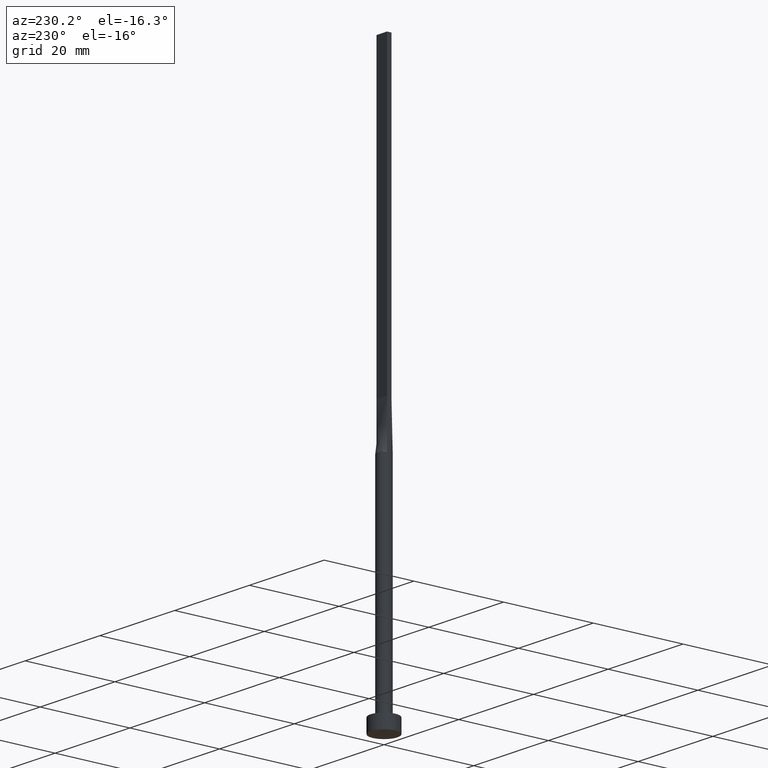
[diagram: clean part render]
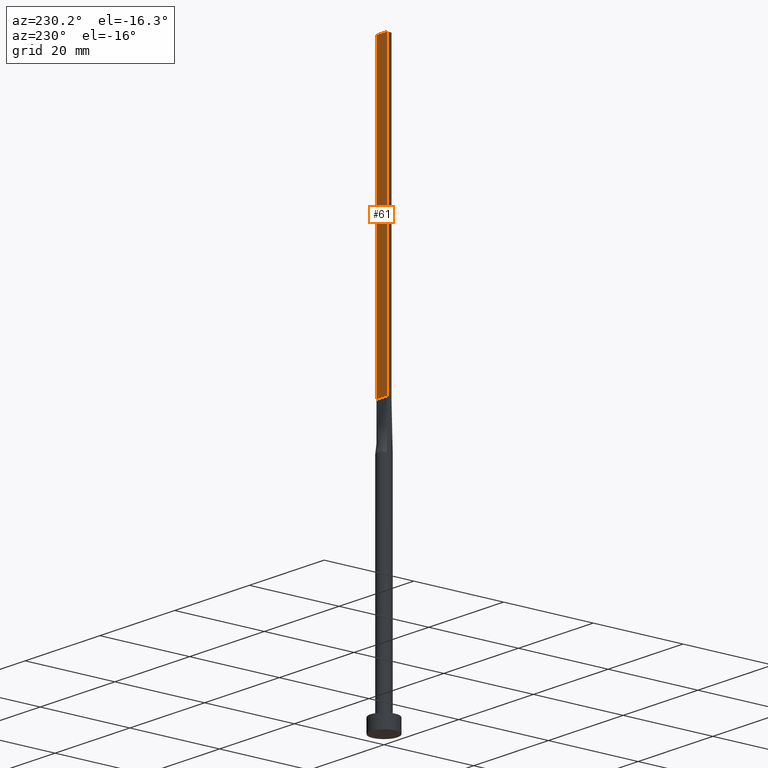
[diagram: same view with one face highlighted and labeled with its STEP entity id]
A machine part, auxiliary view. The second image highlights one B-rep face of the part: STEP entity #61.
In plain terms, the highlighted planar face has unit normal (0, -1, 0).
Its self-contained STEP definition (entity closure, byte-faithful):
#38 = PLANE ( 'NONE',  #295 ) ;
#55 = CARTESIAN_POINT ( 'NONE',  ( -1.399999999999999689, 0.5000000000000002220, 125.0000000000000000 ) ) ;
#61 = ADVANCED_FACE ( 'NONE', ( #480 ), #38, .F. ) ;
#64 = EDGE_LOOP ( 'NONE', ( #387, #554, #400, #112 ) ) ;
#68 = EDGE_CURVE ( 'NONE', #208, #371, #209, .T. ) ;
#112 = ORIENTED_EDGE ( 'NONE', *, *, #338, .T. ) ;
#117 = CARTESIAN_POINT ( 'NONE',  ( -1.399999999999999689, 0.5000000000000002220, 125.0000000000000000 ) ) ;
#127 = DIRECTION ( 'NONE',  ( 0.000000000000000000, -0.000000000000000000, -1.000000000000000000 ) ) ;
#131 = LINE ( 'NONE', #55, #233 ) ;
#167 = CARTESIAN_POINT ( 'NONE',  ( 1.399999999999999689, 0.5000000000000002220, 60.00000000000000711 ) ) ;
#172 = DIRECTION ( 'NONE',  ( 0.000000000000000000, -1.000000000000000000, 0.000000000000000000 ) ) ;
#179 = CARTESIAN_POINT ( 'NONE',  ( -1.399999999999999689, 0.5000000000000002220, 60.00000000000000711 ) ) ;
#208 = VERTEX_POINT ( 'NONE', #490 ) ;
#209 = LINE ( 'NONE', #296, #246 ) ;
#226 = LINE ( 'NONE', #179, #430 ) ;
#233 = VECTOR ( 'NONE', #314, 1000.000000000000000 ) ;
#239 = LINE ( 'NONE', #429, #456 ) ;
#246 = VECTOR ( 'NONE', #303, 1000.000000000000000 ) ;
#284 = VERTEX_POINT ( 'NONE', #167 ) ;
#295 = AXIS2_PLACEMENT_3D ( 'NONE', #534, #172, #127 ) ;
#296 = CARTESIAN_POINT ( 'NONE',  ( 1.399999999999999689, 0.5000000000000002220, 125.0000000000000000 ) ) ;
#297 = CARTESIAN_POINT ( 'NONE',  ( -1.399999999999999689, 0.5000000000000002220, 60.00000000000000711 ) ) ;
#303 = DIRECTION ( 'NONE',  ( -1.000000000000000000, 0.000000000000000000, 0.000000000000000000 ) ) ;
#314 = DIRECTION ( 'NONE',  ( -0.000000000000000000, -0.000000000000000000, -1.000000000000000000 ) ) ;
#333 = VERTEX_POINT ( 'NONE', #297 ) ;
#338 = EDGE_CURVE ( 'NONE', #208, #284, #239, .T. ) ;
#346 = DIRECTION ( 'NONE',  ( -0.000000000000000000, -0.000000000000000000, -1.000000000000000000 ) ) ;
#371 = VERTEX_POINT ( 'NONE', #117 ) ;
#387 = ORIENTED_EDGE ( 'NONE', *, *, #540, .T. ) ;
#400 = ORIENTED_EDGE ( 'NONE', *, *, #68, .F. ) ;
#429 = CARTESIAN_POINT ( 'NONE',  ( 1.399999999999999689, 0.5000000000000002220, 125.0000000000000000 ) ) ;
#430 = VECTOR ( 'NONE', #537, 1000.000000000000000 ) ;
#456 = VECTOR ( 'NONE', #346, 1000.000000000000000 ) ;
#480 = FACE_OUTER_BOUND ( 'NONE', #64, .T. ) ;
#490 = CARTESIAN_POINT ( 'NONE',  ( 1.399999999999999689, 0.5000000000000002220, 125.0000000000000000 ) ) ;
#534 = CARTESIAN_POINT ( 'NONE',  ( 1.399999999999999689, 0.5000000000000002220, 125.0000000000000000 ) ) ;
#537 = DIRECTION ( 'NONE',  ( -1.000000000000000000, -0.000000000000000000, -0.000000000000000000 ) ) ;
#540 = EDGE_CURVE ( 'NONE', #284, #333, #226, .T. ) ;
#548 = EDGE_CURVE ( 'NONE', #371, #333, #131, .T. ) ;
#554 = ORIENTED_EDGE ( 'NONE', *, *, #548, .F. ) ;